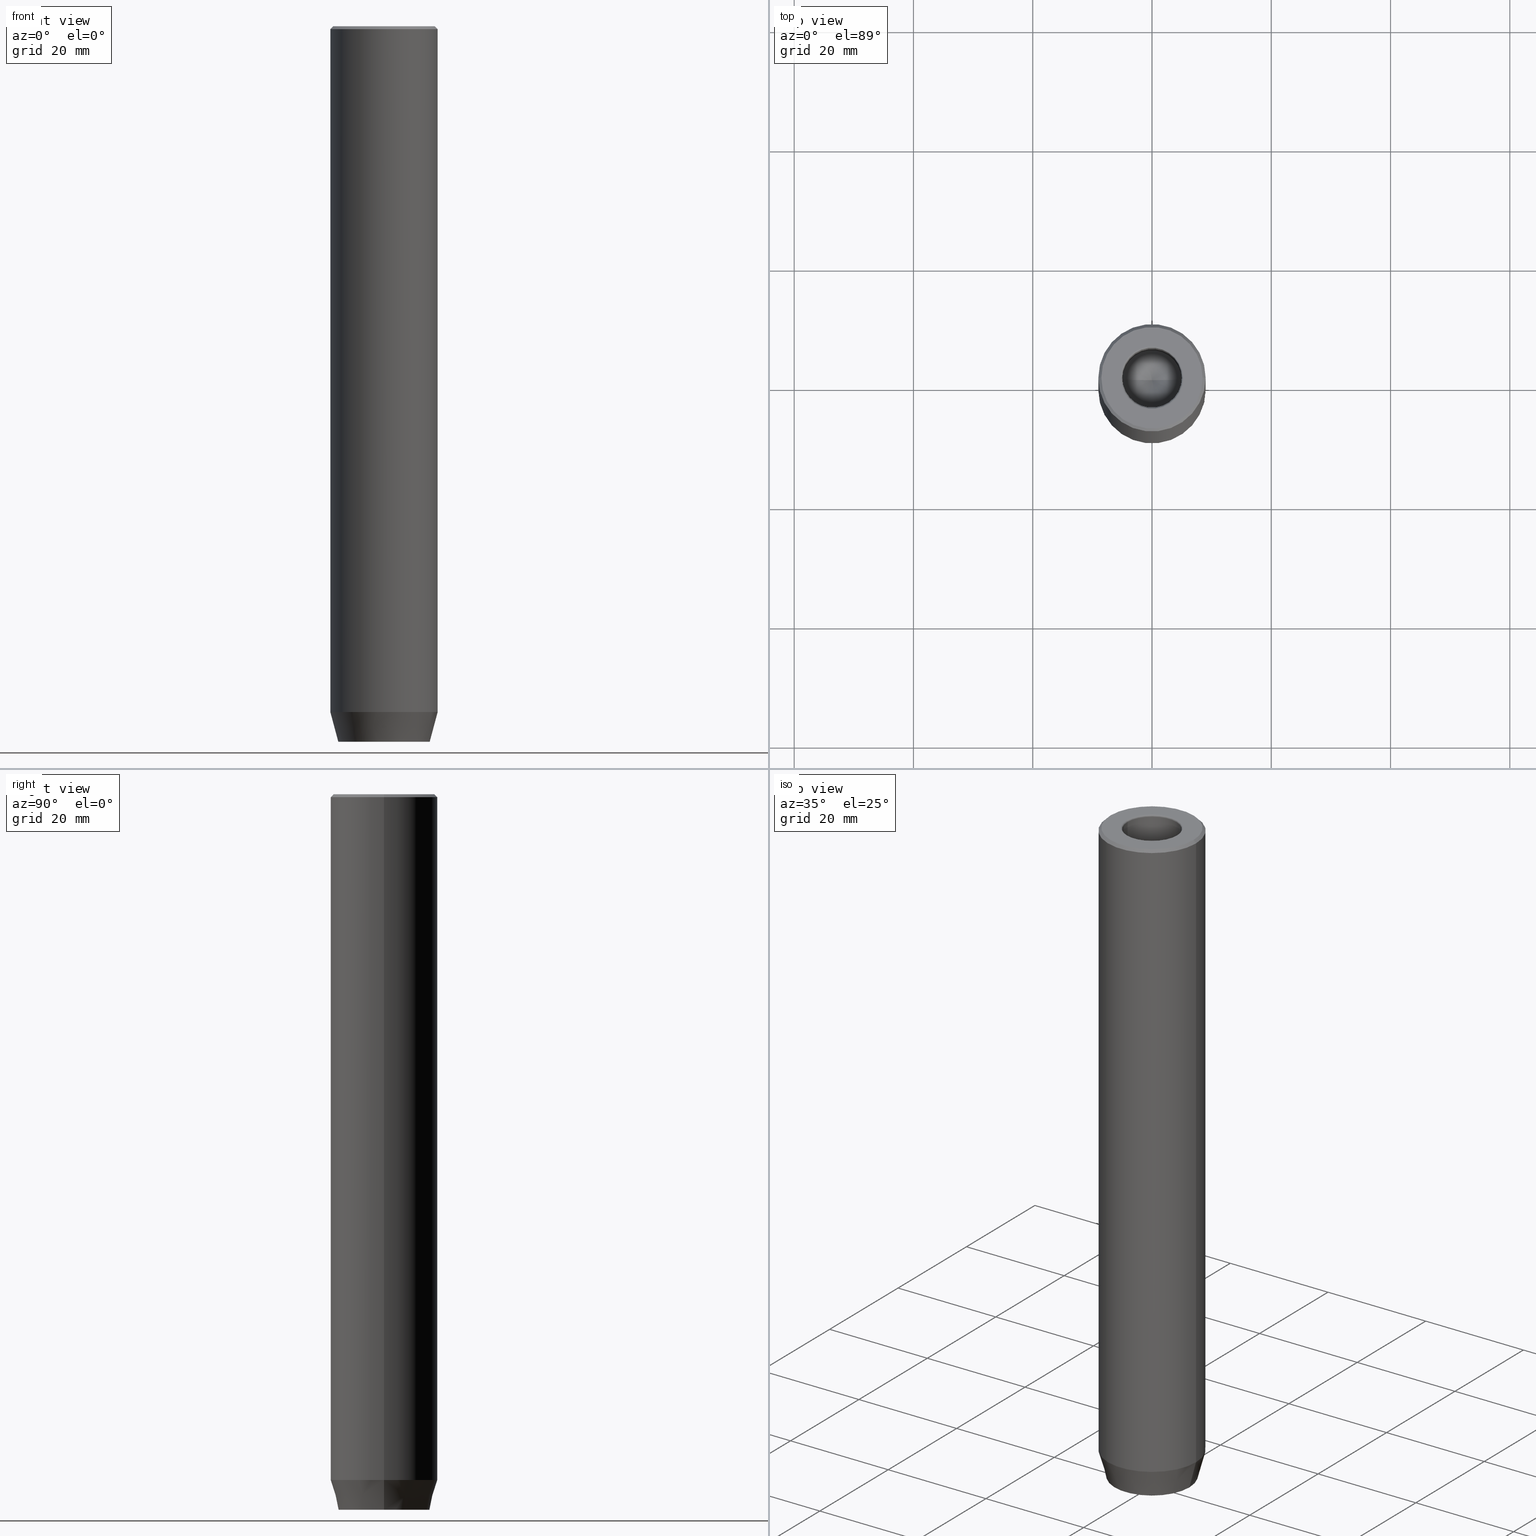
[diagram: canonical four-view strip — front | top / right | iso, engineering-drawing reading convention]
A machine part, canonical four-view strip (front | top / right | iso — engineering-drawing reading convention). The complete STEP part file that produces these views, byte-faithful:
ISO-10303-21;
HEADER;
FILE_DESCRIPTION (( 'STEP AP203' ),
    '1' );
FILE_NAME ('1062.STEP',
    '2024-01-02T17:29:06',
    ( '' ),
    ( '' ),
    'SwSTEP 2.0',
    'SolidWorks 2019',
    '' );
FILE_SCHEMA (( 'CONFIG_CONTROL_DESIGN' ));
ENDSEC;

DATA;
#1 = EDGE_CURVE ( 'NONE', #436, #375, #466, .T. ) ;
#2 = DIRECTION ( 'NONE',  ( -0.000000000000000000, -0.000000000000000000, 1.000000000000000000 ) ) ;
#3 = PRODUCT_DEFINITION_SHAPE ( 'NONE', 'NONE',  #337 ) ;
#4 = CIRCLE ( 'NONE', #541, 9.000000000000000000 ) ;
#5 = ORIENTED_EDGE ( 'NONE', *, *, #439, .T. ) ;
#6 = VECTOR ( 'NONE', #597, 1000.000000000000000 ) ;
#7 = CARTESIAN_POINT ( 'NONE',  ( 0.000000000000000000, 0.000000000000000000, -20.00000000000000000 ) ) ;
#8 = UNCERTAINTY_MEASURE_WITH_UNIT (LENGTH_MEASURE( 1.000000000000000082E-05 ), #278, 'distance_accuracy_value', 'NONE');
#9 = EDGE_CURVE ( 'NONE', #245, #316, #268, .T. ) ;
#10 = CARTESIAN_POINT ( 'NONE',  ( 9.000000000000000000, 0.000000000000000000, -114.9999999999999858 ) ) ;
#11 = CARTESIAN_POINT ( 'NONE',  ( 1.499999999999999556, -2.598076211353316012, -114.2000000000000028 ) ) ;
#12 = CARTESIAN_POINT ( 'NONE',  ( -9.000000000000000000, 1.102182119232617714E-15, -114.9999999999999858 ) ) ;
#13 = FACE_OUTER_BOUND ( 'NONE', #595, .T. ) ;
#14 = AXIS2_PLACEMENT_3D ( 'NONE', #251, #632, #46 ) ;
#15 = DIRECTION ( 'NONE',  ( 0.000000000000000000, -0.000000000000000000, 1.000000000000000000 ) ) ;
#16 = CIRCLE ( 'NONE', #523, 7.660254037844380193 ) ;
#17 = CIRCLE ( 'NONE', #275, 4.999999999999997335 ) ;
#18 = CARTESIAN_POINT ( 'NONE',  ( 2.999999999999999556, -7.511572993685796142E-16, -114.2000000000000028 ) ) ;
#19 = ORIENTED_EDGE ( 'NONE', *, *, #9, .T. ) ;
#20 = ORIENTED_EDGE ( 'NONE', *, *, #138, .F. ) ;
#21 = CARTESIAN_POINT ( 'NONE',  ( 1.499999999999999112, 2.598076211353316012, -114.2000000000000028 ) ) ;
#22 = DIRECTION ( 'NONE',  ( 0.8660254037844387076, -0.4999999999999997780, 0.000000000000000000 ) ) ;
#23 = EDGE_LOOP ( 'NONE', ( #26, #43, #530, #446 ) ) ;
#24 = VERTEX_POINT ( 'NONE', #66 ) ;
#25 = DIRECTION ( 'NONE',  ( 0.000000000000000000, -1.000000000000000000, 0.000000000000000000 ) ) ;
#26 = ORIENTED_EDGE ( 'NONE', *, *, #449, .F. ) ;
#27 = VECTOR ( 'NONE', #587, 1000.000000000000000 ) ;
#28 = CARTESIAN_POINT ( 'NONE',  ( 0.000000000000000000, 3.464101615137753054, -114.2000000000000028 ) ) ;
#29 = LOCAL_TIME ( 18, 29, 6.000000000000000000, #483 ) ;
#30 = ORIENTED_EDGE ( 'NONE', *, *, #146, .F. ) ;
#31 = DIRECTION ( 'NONE',  ( 1.224646799147353207E-16, 1.000000000000000000, 0.000000000000000000 ) ) ;
#32 = ORIENTED_EDGE ( 'NONE', *, *, #242, .F. ) ;
#33 = ORIENTED_EDGE ( 'NONE', *, *, #9, .F. ) ;
#34 = ORIENTED_EDGE ( 'NONE', *, *, #494, .F. ) ;
#35 = APPROVAL_STATUS ( 'not_yet_approved' ) ;
#36 = FACE_BOUND ( 'NONE', #624, .T. ) ;
#37 = APPROVAL_ROLE ( '' ) ;
#38 = CARTESIAN_POINT ( 'NONE',  ( -5.477553227319343599E-15, 0.000000000000000000, -23.00430309513780003 ) ) ;
#39 = FACE_OUTER_BOUND ( 'NONE', #478, .T. ) ;
#40 = ORIENTED_EDGE ( 'NONE', *, *, #91, .T. ) ;
#41 = CARTESIAN_POINT ( 'NONE',  ( 0.000000000000000000, 0.000000000000000000, 0.000000000000000000 ) ) ;
#42 = ADVANCED_BREP_SHAPE_REPRESENTATION ( '1062', ( #185, #201 ), #328 ) ;
#43 = ORIENTED_EDGE ( 'NONE', *, *, #122, .F. ) ;
#44 = DIRECTION ( 'NONE',  ( 1.000000000000000000, 0.000000000000000000, 0.000000000000000000 ) ) ;
#45 = PERSON_AND_ORGANIZATION_ROLE ( 'design_supplier' ) ;
#46 = DIRECTION ( 'NONE',  ( -1.000000000000000000, 0.000000000000000000, -0.000000000000000000 ) ) ;
#47 = DIRECTION ( 'NONE',  ( 1.000000000000000000, 0.000000000000000000, 0.000000000000000000 ) ) ;
#48 = ORIENTED_EDGE ( 'NONE', *, *, #266, .F. ) ;
#49 = CARTESIAN_POINT ( 'NONE',  ( 0.000000000000000000, 0.000000000000000000, 0.000000000000000000 ) ) ;
#50 = ADVANCED_FACE ( 'NONE', ( #212 ), #61, .F. ) ;
#51 = ORIENTED_EDGE ( 'NONE', *, *, #356, .F. ) ;
#52 = EDGE_LOOP ( 'NONE', ( #428, #290, #33, #563 ) ) ;
#53 = FACE_OUTER_BOUND ( 'NONE', #425, .T. ) ;
#54 = DESIGN_CONTEXT ( 'detailed design', #222, 'design' ) ;
#55 = ORIENTED_EDGE ( 'NONE', *, *, #627, .F. ) ;
#56 = DIRECTION ( 'NONE',  ( -0.7071067811865549002, 0.000000000000000000, -0.7071067811865401342 ) ) ;
#57 = CC_DESIGN_DATE_AND_TIME_ASSIGNMENT ( #284, #387, ( #337 ) ) ;
#58 = DIRECTION ( 'NONE',  ( 0.000000000000000000, 0.000000000000000000, -1.000000000000000000 ) ) ;
#59 = DIRECTION ( 'NONE',  ( -0.000000000000000000, -0.000000000000000000, -1.000000000000000000 ) ) ;
#60 = LINE ( 'NONE', #12, #406 ) ;
#61 = PLANE ( 'NONE',  #392 ) ;
#62 = ORIENTED_EDGE ( 'NONE', *, *, #190, .T. ) ;
#63 = CARTESIAN_POINT ( 'NONE',  ( -1.499999999999999112, -2.598076211353316012, -114.2000000000000028 ) ) ;
#64 = AXIS2_PLACEMENT_3D ( 'NONE', #488, #127, #525 ) ;
#65 = APPROVAL ( #295, 'NEUR�EN�' ) ;
#66 = CARTESIAN_POINT ( 'NONE',  ( 0.000000000000000000, -3.464101615137753942, -114.2000000000000028 ) ) ;
#67 = DIRECTION ( 'NONE',  ( -0.000000000000000000, -0.000000000000000000, 1.000000000000000000 ) ) ;
#68 = CARTESIAN_POINT ( 'NONE',  ( 0.000000000000000000, 0.000000000000000000, -114.9999999999999858 ) ) ;
#69 = CARTESIAN_POINT ( 'NONE',  ( 1.499999999999999556, -2.598076211353316012, -120.0000000000000000 ) ) ;
#70 = ORIENTED_EDGE ( 'NONE', *, *, #576, .F. ) ;
#71 = ORIENTED_EDGE ( 'NONE', *, *, #343, .F. ) ;
#72 = DIRECTION ( 'NONE',  ( -0.000000000000000000, -0.000000000000000000, 1.000000000000000000 ) ) ;
#73 = CIRCLE ( 'NONE', #381, 4.999999999999995559 ) ;
#74 = DIRECTION ( 'NONE',  ( 2.503857664561932376E-16, 1.000000000000000000, 0.000000000000000000 ) ) ;
#75 = AXIS2_PLACEMENT_3D ( 'NONE', #534, #87, #508 ) ;
#76 = EDGE_LOOP ( 'NONE', ( #204, #610, #299, #490 ) ) ;
#77 = DIRECTION ( 'NONE',  ( 0.000000000000000000, 0.000000000000000000, 1.000000000000000000 ) ) ;
#78 = CARTESIAN_POINT ( 'NONE',  ( 2.999999999999999556, -7.511572993685796142E-16, -114.2000000000000028 ) ) ;
#79 = ADVANCED_FACE ( 'NONE', ( #13 ), #485, .T. ) ;
#80 = ORIENTED_EDGE ( 'NONE', *, *, #562, .T. ) ;
#81 = DIRECTION ( 'NONE',  ( -0.8660254037844387076, 0.4999999999999997780, 0.000000000000000000 ) ) ;
#82 = APPROVAL_ROLE ( '' ) ;
#83 = CARTESIAN_POINT ( 'NONE',  ( 0.000000000000000000, 0.000000000000000000, 0.000000000000000000 ) ) ;
#84 = APPROVAL ( #35, 'NEUR�EN�' ) ;
#85 = VECTOR ( 'NONE', #571, 999.9999999999998863 ) ;
#86 = VECTOR ( 'NONE', #415, 1000.000000000000000 ) ;
#87 = DIRECTION ( 'NONE',  ( -0.000000000000000000, -0.000000000000000000, 1.000000000000000000 ) ) ;
#88 = ORIENTED_EDGE ( 'NONE', *, *, #456, .T. ) ;
#89 = ORIENTED_EDGE ( 'NONE', *, *, #356, .T. ) ;
#90 = DIRECTION ( 'NONE',  ( -0.000000000000000000, -0.000000000000000000, 1.000000000000000000 ) ) ;
#91 = EDGE_CURVE ( 'NONE', #316, #264, #309, .T. ) ;
#92 = CALENDAR_DATE ( 2024, 2, 1 ) ;
#93 = VERTEX_POINT ( 'NONE', #605 ) ;
#94 = DIRECTION ( 'NONE',  ( -1.000000000000000000, 0.000000000000000000, 0.000000000000000000 ) ) ;
#95 = AXIS2_PLACEMENT_3D ( 'NONE', #433, #626, #388 ) ;
#96 = CC_DESIGN_APPROVAL ( #192, ( #337 ) ) ;
#97 = SECURITY_CLASSIFICATION ( '', '', #631 ) ;
#98 = LINE ( 'NONE', #496, #253 ) ;
#99 = ADVANCED_FACE ( 'NONE', ( #517 ), #532, .T. ) ;
#100 = VERTEX_POINT ( 'NONE', #361 ) ;
#101 = FACE_OUTER_BOUND ( 'NONE', #76, .T. ) ;
#102 = VERTEX_POINT ( 'NONE', #158 ) ;
#103 = EDGE_CURVE ( 'NONE', #112, #345, #553, .T. ) ;
#104 = FACE_OUTER_BOUND ( 'NONE', #371, .T. ) ;
#105 = CIRCLE ( 'NONE', #460, 9.000000000000000000 ) ;
#106 = DIRECTION ( 'NONE',  ( -0.2588190451025214611, 3.169619151431774186E-17, 0.9659258262890679791 ) ) ;
#107 = DIRECTION ( 'NONE',  ( -0.4999999999999998335, 0.8660254037844388186, 0.000000000000000000 ) ) ;
#108 = DIRECTION ( 'NONE',  ( 0.8660254037844387076, -0.4999999999999997780, 0.000000000000000000 ) ) ;
#109 = ORIENTED_EDGE ( 'NONE', *, *, #1, .T. ) ;
#110 = VERTEX_POINT ( 'NONE', #314 ) ;
#111 = DIRECTION ( 'NONE',  ( -0.000000000000000000, -0.000000000000000000, 1.000000000000000000 ) ) ;
#112 = VERTEX_POINT ( 'NONE', #459 ) ;
#113 = DIRECTION ( 'NONE',  ( -1.000000000000000000, 2.503857664561932376E-16, 0.000000000000000000 ) ) ;
#114 = AXIS2_PLACEMENT_3D ( 'NONE', #160, #196, #510 ) ;
#115 = DIRECTION ( 'NONE',  ( -0.000000000000000000, -0.000000000000000000, 1.000000000000000000 ) ) ;
#116 = APPROVAL_DATE_TIME ( #611, #84 ) ;
#117 = DIRECTION ( 'NONE',  ( -1.000000000000000000, 0.000000000000000000, 0.000000000000000000 ) ) ;
#118 = ORIENTED_EDGE ( 'NONE', *, *, #120, .F. ) ;
#119 = ORIENTED_EDGE ( 'NONE', *, *, #494, .T. ) ;
#120 = EDGE_CURVE ( 'NONE', #220, #546, #612, .T. ) ;
#121 = CARTESIAN_POINT ( 'NONE',  ( 4.999999999999997335, 0.000000000000000000, 0.000000000000000000 ) ) ;
#122 = EDGE_CURVE ( 'NONE', #241, #145, #350, .T. ) ;
#123 = VECTOR ( 'NONE', #427, 1000.000000000000000 ) ;
#124 = DIRECTION ( 'NONE',  ( -0.8571673007021120005, 1.049727191138618326E-16, 0.5150380749100547106 ) ) ;
#125 = CIRCLE ( 'NONE', #75, 4.999999999999995559 ) ;
#126 = ORIENTED_EDGE ( 'NONE', *, *, #519, .T. ) ;
#127 = DIRECTION ( 'NONE',  ( -0.000000000000000000, -0.000000000000000000, 1.000000000000000000 ) ) ;
#128 = CARTESIAN_POINT ( 'NONE',  ( 0.000000000000000000, 0.000000000000000000, -0.4999999999999952260 ) ) ;
#129 = ORIENTED_EDGE ( 'NONE', *, *, #389, .T. ) ;
#130 = PERSON_AND_ORGANIZATION_ROLE ( 'design_owner' ) ;
#131 = LINE ( 'NONE', #270, #174 ) ;
#132 = ORIENTED_EDGE ( 'NONE', *, *, #191, .F. ) ;
#133 = ORIENTED_EDGE ( 'NONE', *, *, #627, .T. ) ;
#134 = DIRECTION ( 'NONE',  ( -0.000000000000000000, -0.000000000000000000, 1.000000000000000000 ) ) ;
#135 = VECTOR ( 'NONE', #171, 1000.000000000000000 ) ;
#136 = EDGE_CURVE ( 'NONE', #583, #377, #184, .T. ) ;
#137 = CARTESIAN_POINT ( 'NONE',  ( 0.000000000000000000, 3.464101615137753054, -114.2000000000000028 ) ) ;
#138 = EDGE_CURVE ( 'NONE', #241, #558, #416, .T. ) ;
#139 = CARTESIAN_POINT ( 'NONE',  ( 0.000000000000000000, 0.000000000000000000, -120.0000000000000000 ) ) ;
#140 = DIRECTION ( 'NONE',  ( -0.000000000000000000, -0.000000000000000000, 1.000000000000000000 ) ) ;
#141 = AXIS2_PLACEMENT_3D ( 'NONE', #374, #503, #506 ) ;
#142 = COORDINATED_UNIVERSAL_TIME_OFFSET ( 1, 0, .AHEAD. ) ;
#143 = VERTEX_POINT ( 'NONE', #366 ) ;
#144 = CARTESIAN_POINT ( 'NONE',  ( 8.499999999999992895, 1.040949779275249548E-15, 0.000000000000000000 ) ) ;
#145 = VERTEX_POINT ( 'NONE', #555 ) ;
#146 = EDGE_CURVE ( 'NONE', #264, #24, #453, .T. ) ;
#147 = ORIENTED_EDGE ( 'NONE', *, *, #146, .T. ) ;
#148 = CARTESIAN_POINT ( 'NONE',  ( -5.299999999999997158, 6.490628035480969952E-16, 0.000000000000000000 ) ) ;
#149 = EDGE_CURVE ( 'NONE', #24, #436, #197, .T. ) ;
#150 = CARTESIAN_POINT ( 'NONE',  ( 0.000000000000000000, 0.000000000000000000, 0.000000000000000000 ) ) ;
#151 = EDGE_LOOP ( 'NONE', ( #504, #19, #40, #147, #62, #318 ) ) ;
#152 = CONICAL_SURFACE ( 'NONE', #359, 4.999999999999995559, 1.029744258676653867 ) ;
#153 = APPROVAL_PERSON_ORGANIZATION ( #339, #65, #592 ) ;
#154 = CARTESIAN_POINT ( 'NONE',  ( 0.000000000000000000, 0.000000000000000000, -114.9999999999999858 ) ) ;
#155 = CARTESIAN_POINT ( 'NONE',  ( 0.000000000000000000, 0.000000000000000000, -0.2999999999999999889 ) ) ;
#156 = CC_DESIGN_PERSON_AND_ORGANIZATION_ASSIGNMENT ( #401, #539, ( #97 ) ) ;
#157 = CARTESIAN_POINT ( 'NONE',  ( 1.499999999999999112, 2.598076211353316012, -120.0000000000000000 ) ) ;
#158 = CARTESIAN_POINT ( 'NONE',  ( 9.000000000000000000, 0.000000000000000000, -114.9999999999999858 ) ) ;
#159 = ORIENTED_EDGE ( 'NONE', *, *, #178, .F. ) ;
#160 = CARTESIAN_POINT ( 'NONE',  ( 0.000000000000000000, 0.000000000000000000, 0.000000000000000000 ) ) ;
#161 = VECTOR ( 'NONE', #22, 1000.000000000000114 ) ;
#162 = AXIS2_PLACEMENT_3D ( 'NONE', #227, #615, #386 ) ;
#163 = DIRECTION ( 'NONE',  ( -0.000000000000000000, -0.000000000000000000, -1.000000000000000000 ) ) ;
#164 = CC_DESIGN_SECURITY_CLASSIFICATION ( #97, ( #442 ) ) ;
#165 = DIRECTION ( 'NONE',  ( 1.000000000000000000, 0.000000000000000000, 0.000000000000000000 ) ) ;
#166 = EDGE_LOOP ( 'NONE', ( #129, #537, #32, #133 ) ) ;
#167 = PERSON_AND_ORGANIZATION ( #225, #559 ) ;
#168 = EDGE_CURVE ( 'NONE', #288, #220, #455, .T. ) ;
#169 = DIRECTION ( 'NONE',  ( 0.000000000000000000, 0.000000000000000000, -1.000000000000000000 ) ) ;
#170 = PERSON_AND_ORGANIZATION ( #225, #559 ) ;
#171 = DIRECTION ( 'NONE',  ( -0.000000000000000000, -0.000000000000000000, -1.000000000000000000 ) ) ;
#172 = ORIENTED_EDGE ( 'NONE', *, *, #168, .T. ) ;
#173 = PERSON_AND_ORGANIZATION_ROLE ( 'creator' ) ;
#174 = VECTOR ( 'NONE', #124, 1000.000000000000000 ) ;
#175 = APPROVAL_PERSON_ORGANIZATION ( #170, #192, #82 ) ;
#176 = LINE ( 'NONE', #481, #511 ) ;
#177 = PERSON_AND_ORGANIZATION ( #225, #559 ) ;
#178 = EDGE_CURVE ( 'NONE', #110, #436, #529, .T. ) ;
#179 = LINE ( 'NONE', #621, #591 ) ;
#180 = CARTESIAN_POINT ( 'NONE',  ( 0.000000000000000000, 0.000000000000000000, -114.9999999999999858 ) ) ;
#181 = ORIENTED_EDGE ( 'NONE', *, *, #400, .F. ) ;
#182 = ORIENTED_EDGE ( 'NONE', *, *, #149, .F. ) ;
#183 = DIRECTION ( 'NONE',  ( 1.000000000000000000, 0.000000000000000000, 0.000000000000000000 ) ) ;
#184 = CIRCLE ( 'NONE', #141, 5.299999999999997158 ) ;
#185 = MANIFOLD_SOLID_BREP ( 'Odebrat vysunut�m1', #231 ) ;
#186 = SHAPE_DEFINITION_REPRESENTATION ( #3, #42 ) ;
#187 = FACE_OUTER_BOUND ( 'NONE', #565, .T. ) ;
#188 = EDGE_LOOP ( 'NONE', ( #70, #209, #396, #34 ) ) ;
#189 = CARTESIAN_POINT ( 'NONE',  ( 0.000000000000000000, 0.000000000000000000, 0.000000000000000000 ) ) ;
#190 = EDGE_CURVE ( 'NONE', #24, #143, #179, .T. ) ;
#191 = EDGE_CURVE ( 'NONE', #302, #100, #131, .T. ) ;
#192 = APPROVAL ( #281, 'NEUR�EN�' ) ;
#193 = DIRECTION ( 'NONE',  ( 1.000000000000000000, 0.000000000000000000, 0.000000000000000000 ) ) ;
#194 = VECTOR ( 'NONE', #108, 1000.000000000000114 ) ;
#195 = CARTESIAN_POINT ( 'NONE',  ( 4.999999999999995559, 0.000000000000000000, -20.00000000000000000 ) ) ;
#196 = DIRECTION ( 'NONE',  ( 0.000000000000000000, 0.000000000000000000, -1.000000000000000000 ) ) ;
#197 = LINE ( 'NONE', #410, #613 ) ;
#198 = CARTESIAN_POINT ( 'NONE',  ( 2.999999999999999112, -1.732050807568876971, -114.2000000000000028 ) ) ;
#199 = DIRECTION ( 'NONE',  ( -0.000000000000000000, -0.000000000000000000, 1.000000000000000000 ) ) ;
#200 = AXIS2_PLACEMENT_3D ( 'NONE', #580, #347, #47 ) ;
#201 = AXIS2_PLACEMENT_3D ( 'NONE', #527, #77, #384 ) ;
#202 = CARTESIAN_POINT ( 'NONE',  ( 2.168404344971008868E-16, 3.464101615137755275, -120.0000000000000000 ) ) ;
#203 = DIRECTION ( 'NONE',  ( -0.000000000000000000, -0.000000000000000000, 1.000000000000000000 ) ) ;
#204 = ORIENTED_EDGE ( 'NONE', *, *, #250, .T. ) ;
#205 = PRODUCT ( '1062', '1062', '', ( #618 ) ) ;
#206 = DIRECTION ( 'NONE',  ( 0.8660254037844387076, 0.4999999999999997224, 0.000000000000000000 ) ) ;
#207 = CARTESIAN_POINT ( 'NONE',  ( -1.499999999999999112, -2.598076211353316012, -120.0000000000000000 ) ) ;
#208 = EDGE_CURVE ( 'NONE', #102, #333, #329, .T. ) ;
#209 = ORIENTED_EDGE ( 'NONE', *, *, #400, .T. ) ;
#210 = ORIENTED_EDGE ( 'NONE', *, *, #122, .T. ) ;
#211 = ORIENTED_EDGE ( 'NONE', *, *, #576, .T. ) ;
#212 = FACE_OUTER_BOUND ( 'NONE', #237, .T. ) ;
#213 = VERTEX_POINT ( 'NONE', #424 ) ;
#214 = ORIENTED_EDGE ( 'NONE', *, *, #581, .F. ) ;
#215 = VECTOR ( 'NONE', #311, 1000.000000000000114 ) ;
#216 = VECTOR ( 'NONE', #56, 1000.000000000000000 ) ;
#217 = CYLINDRICAL_SURFACE ( 'NONE', #286, 4.999999999999997335 ) ;
#218 = VECTOR ( 'NONE', #206, 1000.000000000000114 ) ;
#219 = PLANE ( 'NONE',  #421 ) ;
#220 = VERTEX_POINT ( 'NONE', #568 ) ;
#221 = LINE ( 'NONE', #619, #135 ) ;
#222 = APPLICATION_CONTEXT ( 'configuration controlled 3d designs of mechanical parts and assemblies' ) ;
#223 = ORIENTED_EDGE ( 'NONE', *, *, #149, .T. ) ;
#224 = ORIENTED_EDGE ( 'NONE', *, *, #581, .T. ) ;
#225 = PERSON ( 'NEUR�EN�', 'NEUR�EN�', 'NEUR�EN�', ('NEUR�EN�'), ('NEUR�EN�'), ('NEUR�EN�') ) ;
#226 = CARTESIAN_POINT ( 'NONE',  ( -3.000000000000000888, -1.732050807568876527, -114.2000000000000028 ) ) ;
#227 = CARTESIAN_POINT ( 'NONE',  ( 0.000000000000000000, 7.660254037844380193, -120.0000000000000000 ) ) ;
#228 = ORIENTED_EDGE ( 'NONE', *, *, #136, .T. ) ;
#229 = EDGE_LOOP ( 'NONE', ( #603, #182, #30, #224 ) ) ;
#230 = EDGE_CURVE ( 'NONE', #333, #558, #261, .T. ) ;
#231 = CLOSED_SHELL ( 'NONE', ( #617, #363, #380, #323, #608, #451, #247, #596, #520, #99, #326, #362, #622, #79, #50, #471, #593, #307, #238, #507, #368 ) ) ;
#232 = CALENDAR_DATE ( 2024, 2, 1 ) ;
#233 = VECTOR ( 'NONE', #430, 1000.000000000000000 ) ;
#234 = FACE_OUTER_BOUND ( 'NONE', #229, .T. ) ;
#235 = CARTESIAN_POINT ( 'NONE',  ( 2.999999999999999112, -1.732050807568876971, -114.2000000000000028 ) ) ;
#236 = EDGE_CURVE ( 'NONE', #630, #558, #325, .T. ) ;
#237 = EDGE_LOOP ( 'NONE', ( #126, #548, #71, #255 ) ) ;
#238 = ADVANCED_FACE ( 'NONE', ( #39 ), #219, .F. ) ;
#239 = EDGE_LOOP ( 'NONE', ( #109, #55, #292, #223 ) ) ;
#240 = CARTESIAN_POINT ( 'NONE',  ( -3.000000000000000000, 1.732050807568877859, -120.0000000000000000 ) ) ;
#241 = VERTEX_POINT ( 'NONE', #279 ) ;
#242 = EDGE_CURVE ( 'NONE', #143, #112, #176, .T. ) ;
#243 = LINE ( 'NONE', #589, #27 ) ;
#244 = CARTESIAN_POINT ( 'NONE',  ( -1.499999999999999334, 2.598076211353316456, -114.2000000000000028 ) ) ;
#245 = VERTEX_POINT ( 'NONE', #28 ) ;
#246 = APPLICATION_CONTEXT ( 'configuration controlled 3d designs of mechanical parts and assemblies' ) ;
#247 = ADVANCED_FACE ( 'NONE', ( #36, #276 ), #338, .T. ) ;
#248 = CYLINDRICAL_SURFACE ( 'NONE', #413, 4.999999999999997335 ) ;
#249 = CC_DESIGN_DATE_AND_TIME_ASSIGNMENT ( #403, #636, ( #97 ) ) ;
#250 = EDGE_CURVE ( 'NONE', #102, #630, #4, .T. ) ;
#251 = CARTESIAN_POINT ( 'NONE',  ( 0.000000000000000000, 0.000000000000000000, -114.2000000000000028 ) ) ;
#252 = VECTOR ( 'NONE', #512, 1000.000000000000000 ) ;
#253 = VECTOR ( 'NONE', #445, 1000.000000000000000 ) ;
#254 = ORIENTED_EDGE ( 'NONE', *, *, #191, .T. ) ;
#255 = ORIENTED_EDGE ( 'NONE', *, *, #103, .T. ) ;
#256 = CARTESIAN_POINT ( 'NONE',  ( -3.000000000000000000, 1.732050807568877859, -114.2000000000000028 ) ) ;
#257 = CARTESIAN_POINT ( 'NONE',  ( -4.999999999999997335, 6.123233995736763324E-16, -0.2999999999999999889 ) ) ;
#258 = DIRECTION ( 'NONE',  ( 1.000000000000000000, 0.000000000000000000, 0.000000000000000000 ) ) ;
#259 = FACE_OUTER_BOUND ( 'NONE', #239, .T. ) ;
#260 = ORIENTED_EDGE ( 'NONE', *, *, #456, .F. ) ;
#261 = CIRCLE ( 'NONE', #382, 9.000000000000000000 ) ;
#262 = CIRCLE ( 'NONE', #114, 5.299999999999997158 ) ;
#263 = DIRECTION ( 'NONE',  ( 1.000000000000000000, 0.000000000000000000, 0.000000000000000000 ) ) ;
#264 = VERTEX_POINT ( 'NONE', #235 ) ;
#265 = LINE ( 'NONE', #407, #6 ) ;
#266 = EDGE_CURVE ( 'NONE', #583, #546, #315, .T. ) ;
#267 = EDGE_CURVE ( 'NONE', #316, #344, #221, .T. ) ;
#268 = LINE ( 'NONE', #418, #161 ) ;
#269 = CALENDAR_DATE ( 2024, 2, 1 ) ;
#270 = CARTESIAN_POINT ( 'NONE',  ( -4.999999999999995559, 6.123233995736761352E-16, -20.00000000000000000 ) ) ;
#271 = ORIENTED_EDGE ( 'NONE', *, *, #1, .F. ) ;
#272 = AXIS2_PLACEMENT_3D ( 'NONE', #551, #420, #258 ) ;
#273 = CIRCLE ( 'NONE', #305, 7.660254037844380193 ) ;
#274 = DIRECTION ( 'NONE',  ( 1.000000000000000000, 0.000000000000000000, 0.000000000000000000 ) ) ;
#275 = AXIS2_PLACEMENT_3D ( 'NONE', #426, #72, #274 ) ;
#276 = FACE_OUTER_BOUND ( 'NONE', #579, .T. ) ;
#277 = ORIENTED_EDGE ( 'NONE', *, *, #409, .T. ) ;
#278 =( LENGTH_UNIT ( ) NAMED_UNIT ( * ) SI_UNIT ( .MILLI., .METRE. ) );
#279 = CARTESIAN_POINT ( 'NONE',  ( -8.499999999999992895, 0.000000000000000000, 0.000000000000000000 ) ) ;
#280 = ORIENTED_EDGE ( 'NONE', *, *, #567, .F. ) ;
#281 = APPROVAL_STATUS ( 'not_yet_approved' ) ;
#282 = CARTESIAN_POINT ( 'NONE',  ( 9.000000000000000000, 0.000000000000000000, 0.000000000000000000 ) ) ;
#283 = VECTOR ( 'NONE', #320, 1000.000000000000000 ) ;
#284 = DATE_AND_TIME ( #469, #29 ) ;
#285 = CIRCLE ( 'NONE', #370, 8.499999999999992895 ) ;
#286 = AXIS2_PLACEMENT_3D ( 'NONE', #566, #521, #334 ) ;
#287 = CARTESIAN_POINT ( 'NONE',  ( 0.000000000000000000, 0.000000000000000000, -0.4999999999999952260 ) ) ;
#288 = VERTEX_POINT ( 'NONE', #435 ) ;
#289 = DIRECTION ( 'NONE',  ( 1.000000000000000000, 0.000000000000000000, 0.000000000000000000 ) ) ;
#290 = ORIENTED_EDGE ( 'NONE', *, *, #267, .F. ) ;
#291 = CARTESIAN_POINT ( 'NONE',  ( -3.000000000000000888, -1.732050807568876527, -120.0000000000000000 ) ) ;
#292 = ORIENTED_EDGE ( 'NONE', *, *, #190, .F. ) ;
#293 = CARTESIAN_POINT ( 'NONE',  ( 5.299999999999997158, 0.000000000000000000, 0.000000000000000000 ) ) ;
#294 = CONICAL_SURFACE ( 'NONE', #351, 9.000000000000000000, 0.2617993877991502405 ) ;
#295 = APPROVAL_STATUS ( 'not_yet_approved' ) ;
#296 = PRODUCT_RELATED_PRODUCT_CATEGORY ( 'detail', '', ( #205 ) ) ;
#297 = FACE_OUTER_BOUND ( 'NONE', #301, .T. ) ;
#298 = EDGE_CURVE ( 'NONE', #558, #333, #550, .T. ) ;
#299 = ORIENTED_EDGE ( 'NONE', *, *, #298, .T. ) ;
#300 = PLANE ( 'NONE',  #14 ) ;
#301 = EDGE_LOOP ( 'NONE', ( #260, #544, #352, #616 ) ) ;
#302 = VERTEX_POINT ( 'NONE', #38 ) ;
#303 = CARTESIAN_POINT ( 'NONE',  ( 0.000000000000000000, 0.000000000000000000, -114.9999999999999858 ) ) ;
#304 = DIRECTION ( 'NONE',  ( 1.000000000000000000, 0.000000000000000000, 0.000000000000000000 ) ) ;
#305 = AXIS2_PLACEMENT_3D ( 'NONE', #139, #493, #444 ) ;
#306 = AXIS2_PLACEMENT_3D ( 'NONE', #41, #134, #342 ) ;
#307 = ADVANCED_FACE ( 'NONE', ( #234 ), #628, .F. ) ;
#308 = CARTESIAN_POINT ( 'NONE',  ( -1.499999999999999334, 2.598076211353316456, -120.0000000000000000 ) ) ;
#309 = LINE ( 'NONE', #18, #283 ) ;
#310 = LINE ( 'NONE', #308, #218 ) ;
#311 = DIRECTION ( 'NONE',  ( -0.8660254037844387076, 0.4999999999999997780, 0.000000000000000000 ) ) ;
#312 = ORIENTED_EDGE ( 'NONE', *, *, #348, .T. ) ;
#313 = PLANE ( 'NONE',  #513 ) ;
#314 = CARTESIAN_POINT ( 'NONE',  ( 2.999999999999999112, -1.732050807568876971, -120.0000000000000000 ) ) ;
#315 = CIRCLE ( 'NONE', #572, 0.2999999999999999334 ) ;
#316 = VERTEX_POINT ( 'NONE', #578 ) ;
#317 = AXIS2_PLACEMENT_3D ( 'NONE', #150, #67, #367 ) ;
#318 = ORIENTED_EDGE ( 'NONE', *, *, #242, .T. ) ;
#319 = DIRECTION ( 'NONE',  ( -0.8660254037844387076, 0.4999999999999998335, 0.000000000000000000 ) ) ;
#320 = DIRECTION ( 'NONE',  ( -2.503857664561932376E-16, -1.000000000000000000, 0.000000000000000000 ) ) ;
#321 = PERSON_AND_ORGANIZATION_ROLE ( 'creator' ) ;
#322 = FACE_OUTER_BOUND ( 'NONE', #23, .T. ) ;
#323 = ADVANCED_FACE ( 'NONE', ( #531 ), #405, .T. ) ;
#324 =( NAMED_UNIT ( * ) PLANE_ANGLE_UNIT ( ) SI_UNIT ( $, .RADIAN. ) );
#325 = LINE ( 'NONE', #522, #123 ) ;
#326 = ADVANCED_FACE ( 'NONE', ( #322 ), #502, .T. ) ;
#327 = APPLICATION_PROTOCOL_DEFINITION ( 'international standard', 'config_control_design', 1994, #222 ) ;
#328 =( GEOMETRIC_REPRESENTATION_CONTEXT ( 3 ) GLOBAL_UNCERTAINTY_ASSIGNED_CONTEXT ( ( #8 ) ) GLOBAL_UNIT_ASSIGNED_CONTEXT ( ( #278, #324, #475 ) ) REPRESENTATION_CONTEXT ( 'NONE', 'WORKASPACE' ) );
#329 = LINE ( 'NONE', #282, #233 ) ;
#330 = EDGE_LOOP ( 'NONE', ( #369, #254, #88 ) ) ;
#331 = ORIENTED_EDGE ( 'NONE', *, *, #136, .F. ) ;
#332 = EDGE_CURVE ( 'NONE', #245, #464, #585, .T. ) ;
#333 = VERTEX_POINT ( 'NONE', #500 ) ;
#334 = DIRECTION ( 'NONE',  ( 1.000000000000000000, 0.000000000000000000, 0.000000000000000000 ) ) ;
#335 = DIRECTION ( 'NONE',  ( 1.000000000000000000, 0.000000000000000000, 0.000000000000000000 ) ) ;
#336 = EDGE_LOOP ( 'NONE', ( #609, #462, #393, #20 ) ) ;
#337 = PRODUCT_DEFINITION ( 'NEZN�M�', '', #442, #54 ) ;
#338 = PLANE ( 'NONE',  #162 ) ;
#339 = PERSON_AND_ORGANIZATION ( #225, #559 ) ;
#340 = AXIS2_PLACEMENT_3D ( 'NONE', #189, #346, #94 ) ;
#341 = LOCAL_TIME ( 18, 29, 6.000000000000000000, #588 ) ;
#342 = DIRECTION ( 'NONE',  ( 1.000000000000000000, 0.000000000000000000, 0.000000000000000000 ) ) ;
#343 = EDGE_CURVE ( 'NONE', #112, #245, #538, .T. ) ;
#344 = VERTEX_POINT ( 'NONE', #540 ) ;
#345 = VERTEX_POINT ( 'NONE', #240 ) ;
#346 = DIRECTION ( 'NONE',  ( 0.000000000000000000, 0.000000000000000000, -1.000000000000000000 ) ) ;
#347 = DIRECTION ( 'NONE',  ( -0.000000000000000000, -0.000000000000000000, 1.000000000000000000 ) ) ;
#348 = EDGE_CURVE ( 'NONE', #213, #93, #273, .T. ) ;
#349 = DIRECTION ( 'NONE',  ( 1.000000000000000000, 0.000000000000000000, 0.000000000000000000 ) ) ;
#350 = CIRCLE ( 'NONE', #472, 8.499999999999992895 ) ;
#351 = AXIS2_PLACEMENT_3D ( 'NONE', #303, #111, #501 ) ;
#352 = ORIENTED_EDGE ( 'NONE', *, *, #629, .T. ) ;
#353 = DIRECTION ( 'NONE',  ( 0.7071067811865549002, 8.659560562355022838E-17, -0.7071067811865401342 ) ) ;
#354 = EDGE_CURVE ( 'NONE', #145, #241, #285, .T. ) ;
#355 = FACE_BOUND ( 'NONE', #431, .T. ) ;
#356 = EDGE_CURVE ( 'NONE', #344, #110, #98, .T. ) ;
#357 = PLANE ( 'NONE',  #414 ) ;
#358 = DIRECTION ( 'NONE',  ( -0.8660254037844387076, -0.4999999999999999445, 0.000000000000000000 ) ) ;
#359 = AXIS2_PLACEMENT_3D ( 'NONE', #395, #402, #44 ) ;
#360 = CARTESIAN_POINT ( 'NONE',  ( -3.000000000000000444, 7.511572993685798115E-16, -114.2000000000000028 ) ) ;
#361 = CARTESIAN_POINT ( 'NONE',  ( -4.999999999999995559, 6.123233995736761352E-16, -20.00000000000000000 ) ) ;
#362 = ADVANCED_FACE ( 'NONE', ( #187 ), #634, .F. ) ;
#363 = ADVANCED_FACE ( 'NONE', ( #297 ), #248, .F. ) ;
#364 = ORIENTED_EDGE ( 'NONE', *, *, #230, .T. ) ;
#365 = PLANE ( 'NONE',  #394 ) ;
#366 = CARTESIAN_POINT ( 'NONE',  ( -3.000000000000000888, -1.732050807568876527, -114.2000000000000028 ) ) ;
#367 = DIRECTION ( 'NONE',  ( 1.000000000000000000, 0.000000000000000000, 0.000000000000000000 ) ) ;
#368 = ADVANCED_FACE ( 'NONE', ( #438 ), #300, .T. ) ;
#369 = ORIENTED_EDGE ( 'NONE', *, *, #439, .F. ) ;
#370 = AXIS2_PLACEMENT_3D ( 'NONE', #637, #492, #289 ) ;
#371 = EDGE_LOOP ( 'NONE', ( #210, #515 ) ) ;
#372 = CIRCLE ( 'NONE', #474, 0.2999999999999999889 ) ;
#373 = APPLICATION_PROTOCOL_DEFINITION ( 'international standard', 'config_control_design', 1994, #246 ) ;
#374 = CARTESIAN_POINT ( 'NONE',  ( 0.000000000000000000, 0.000000000000000000, 0.000000000000000000 ) ) ;
#375 = VERTEX_POINT ( 'NONE', #291 ) ;
#376 = DIRECTION ( 'NONE',  ( 1.000000000000000000, -2.503857664561932376E-16, 0.000000000000000000 ) ) ;
#377 = VERTEX_POINT ( 'NONE', #293 ) ;
#378 = APPROVAL_DATE_TIME ( #560, #192 ) ;
#379 = DIRECTION ( 'NONE',  ( 0.000000000000000000, 0.000000000000000000, -1.000000000000000000 ) ) ;
#380 = ADVANCED_FACE ( 'NONE', ( #447 ), #152, .F. ) ;
#381 = AXIS2_PLACEMENT_3D ( 'NONE', #7, #2, #193 ) ;
#382 = AXIS2_PLACEMENT_3D ( 'NONE', #287, #169, #526 ) ;
#383 = ORIENTED_EDGE ( 'NONE', *, *, #91, .F. ) ;
#384 = DIRECTION ( 'NONE',  ( 1.000000000000000000, 0.000000000000000000, 0.000000000000000000 ) ) ;
#385 = CC_DESIGN_APPROVAL ( #84, ( #442 ) ) ;
#386 = DIRECTION ( 'NONE',  ( -1.000000000000000000, 0.000000000000000000, -0.000000000000000000 ) ) ;
#387 = DATE_TIME_ROLE ( 'creation_date' ) ;
#388 = DIRECTION ( 'NONE',  ( 0.8660254037844385966, 0.4999999999999998890, 0.000000000000000000 ) ) ;
#389 = EDGE_CURVE ( 'NONE', #375, #345, #243, .T. ) ;
#390 = ORIENTED_EDGE ( 'NONE', *, *, #536, .T. ) ;
#391 = DIRECTION ( 'NONE',  ( 0.000000000000000000, 0.000000000000000000, -1.000000000000000000 ) ) ;
#392 = AXIS2_PLACEMENT_3D ( 'NONE', #509, #107, #607 ) ;
#393 = ORIENTED_EDGE ( 'NONE', *, *, #298, .F. ) ;
#394 = AXIS2_PLACEMENT_3D ( 'NONE', #600, #15, #604 ) ;
#395 = CARTESIAN_POINT ( 'NONE',  ( 0.000000000000000000, 0.000000000000000000, -20.00000000000000000 ) ) ;
#396 = ORIENTED_EDGE ( 'NONE', *, *, #468, .T. ) ;
#397 = ORIENTED_EDGE ( 'NONE', *, *, #236, .F. ) ;
#398 = DATE_AND_TIME ( #491, #524 ) ;
#399 = CARTESIAN_POINT ( 'NONE',  ( 0.000000000000000000, 0.000000000000000000, -120.0000000000000000 ) ) ;
#400 = EDGE_CURVE ( 'NONE', #93, #213, #16, .T. ) ;
#401 = PERSON_AND_ORGANIZATION ( #225, #559 ) ;
#402 = DIRECTION ( 'NONE',  ( -0.000000000000000000, -0.000000000000000000, 1.000000000000000000 ) ) ;
#403 = DATE_AND_TIME ( #92, #341 ) ;
#404 = LINE ( 'NONE', #144, #601 ) ;
#405 = CONICAL_SURFACE ( 'NONE', #557, 8.499999999999992895, 0.7853981633974587151 ) ;
#406 = VECTOR ( 'NONE', #106, 1000.000000000000114 ) ;
#407 = CARTESIAN_POINT ( 'NONE',  ( -4.999999999999997335, 6.123233995736763324E-16, 0.000000000000000000 ) ) ;
#408 = PLANE ( 'NONE',  #487 ) ;
#409 = EDGE_CURVE ( 'NONE', #288, #100, #73, .T. ) ;
#410 = CARTESIAN_POINT ( 'NONE',  ( 0.000000000000000000, -3.464101615137753942, -114.2000000000000028 ) ) ;
#411 = DIRECTION ( 'NONE',  ( 0.8660254037844387076, -0.4999999999999998335, 0.000000000000000000 ) ) ;
#412 = DIRECTION ( 'NONE',  ( 1.000000000000000000, 0.000000000000000000, 0.000000000000000000 ) ) ;
#413 = AXIS2_PLACEMENT_3D ( 'NONE', #49, #90, #183 ) ;
#414 = AXIS2_PLACEMENT_3D ( 'NONE', #360, #113, #556 ) ;
#415 = DIRECTION ( 'NONE',  ( -0.000000000000000000, -0.000000000000000000, -1.000000000000000000 ) ) ;
#416 = LINE ( 'NONE', #599, #216 ) ;
#417 = LINE ( 'NONE', #10, #623 ) ;
#418 = CARTESIAN_POINT ( 'NONE',  ( 1.499999999999999112, 2.598076211353316012, -114.2000000000000028 ) ) ;
#419 = COORDINATED_UNIVERSAL_TIME_OFFSET ( 1, 0, .AHEAD. ) ;
#420 = DIRECTION ( 'NONE',  ( -0.000000000000000000, -0.000000000000000000, 1.000000000000000000 ) ) ;
#421 = AXIS2_PLACEMENT_3D ( 'NONE', #78, #376, #470 ) ;
#422 = APPROVAL_PERSON_ORGANIZATION ( #423, #84, #37 ) ;
#423 = PERSON_AND_ORGANIZATION ( #225, #559 ) ;
#424 = CARTESIAN_POINT ( 'NONE',  ( 7.660254037844380193, 0.000000000000000000, -120.0000000000000000 ) ) ;
#425 = EDGE_LOOP ( 'NONE', ( #331, #635, #118, #482 ) ) ;
#426 = CARTESIAN_POINT ( 'NONE',  ( 0.000000000000000000, 0.000000000000000000, -0.2999999999999999889 ) ) ;
#427 = DIRECTION ( 'NONE',  ( -0.000000000000000000, -0.000000000000000000, 1.000000000000000000 ) ) ;
#428 = ORIENTED_EDGE ( 'NONE', *, *, #479, .T. ) ;
#429 = COORDINATED_UNIVERSAL_TIME_OFFSET ( 1, 0, .AHEAD. ) ;
#430 = DIRECTION ( 'NONE',  ( -0.000000000000000000, -0.000000000000000000, 1.000000000000000000 ) ) ;
#431 = EDGE_LOOP ( 'NONE', ( #80, #228 ) ) ;
#432 = FACE_OUTER_BOUND ( 'NONE', #602, .T. ) ;
#433 = CARTESIAN_POINT ( 'NONE',  ( 1.499999999999999556, -2.598076211353316012, -114.2000000000000028 ) ) ;
#434 = CC_DESIGN_PERSON_AND_ORGANIZATION_ASSIGNMENT ( #167, #321, ( #442 ) ) ;
#435 = CARTESIAN_POINT ( 'NONE',  ( 4.999999999999995559, 0.000000000000000000, -20.00000000000000000 ) ) ;
#436 = VERTEX_POINT ( 'NONE', #594 ) ;
#437 = ORIENTED_EDGE ( 'NONE', *, *, #562, .F. ) ;
#438 = FACE_OUTER_BOUND ( 'NONE', #151, .T. ) ;
#439 = EDGE_CURVE ( 'NONE', #302, #288, #543, .T. ) ;
#440 = APPROVAL_DATE_TIME ( #398, #65 ) ;
#441 = VECTOR ( 'NONE', #498, 1000.000000000000000 ) ;
#442 = PRODUCT_DEFINITION_FORMATION_WITH_SPECIFIED_SOURCE ( 'LIBOVOLN�', '', #205, .NOT_KNOWN. ) ;
#443 = DIRECTION ( 'NONE',  ( 0.8660254037844387076, 0.4999999999999997224, 0.000000000000000000 ) ) ;
#444 = DIRECTION ( 'NONE',  ( 1.000000000000000000, 0.000000000000000000, 0.000000000000000000 ) ) ;
#445 = DIRECTION ( 'NONE',  ( -2.503857664561932376E-16, -1.000000000000000000, 0.000000000000000000 ) ) ;
#446 = ORIENTED_EDGE ( 'NONE', *, *, #230, .F. ) ;
#447 = FACE_OUTER_BOUND ( 'NONE', #330, .T. ) ;
#448 = VECTOR ( 'NONE', #163, 1000.000000000000000 ) ;
#449 = EDGE_CURVE ( 'NONE', #145, #333, #404, .T. ) ;
#450 = ORIENTED_EDGE ( 'NONE', *, *, #479, .F. ) ;
#451 = ADVANCED_FACE ( 'NONE', ( #101 ), #545, .T. ) ;
#452 = FACE_OUTER_BOUND ( 'NONE', #52, .T. ) ;
#453 = LINE ( 'NONE', #11, #533 ) ;
#454 = CARTESIAN_POINT ( 'NONE',  ( 5.299999999999997158, 0.000000000000000000, -0.2999999999999999889 ) ) ;
#455 = LINE ( 'NONE', #121, #495 ) ;
#456 = EDGE_CURVE ( 'NONE', #100, #288, #125, .T. ) ;
#457 = FACE_OUTER_BOUND ( 'NONE', #477, .T. ) ;
#458 = VECTOR ( 'NONE', #639, 1000.000000000000000 ) ;
#459 = CARTESIAN_POINT ( 'NONE',  ( -3.000000000000000000, 1.732050807568877859, -114.2000000000000028 ) ) ;
#460 = AXIS2_PLACEMENT_3D ( 'NONE', #154, #516, #263 ) ;
#461 = CC_DESIGN_APPROVAL ( #65, ( #97 ) ) ;
#462 = ORIENTED_EDGE ( 'NONE', *, *, #449, .T. ) ;
#463 = FACE_OUTER_BOUND ( 'NONE', #166, .T. ) ;
#464 = VERTEX_POINT ( 'NONE', #202 ) ;
#465 = DIRECTION ( 'NONE',  ( 0.2588190451025214611, 0.000000000000000000, 0.9659258262890679791 ) ) ;
#466 = LINE ( 'NONE', #207, #215 ) ;
#467 = ORIENTED_EDGE ( 'NONE', *, *, #120, .T. ) ;
#468 = EDGE_CURVE ( 'NONE', #213, #102, #417, .T. ) ;
#469 = CALENDAR_DATE ( 2024, 2, 1 ) ;
#470 = DIRECTION ( 'NONE',  ( 2.503857664561932376E-16, 1.000000000000000000, 0.000000000000000000 ) ) ;
#471 = ADVANCED_FACE ( 'NONE', ( #463 ), #357, .F. ) ;
#472 = AXIS2_PLACEMENT_3D ( 'NONE', #614, #203, #165 ) ;
#473 = ORIENTED_EDGE ( 'NONE', *, *, #208, .T. ) ;
#474 = AXIS2_PLACEMENT_3D ( 'NONE', #454, #25, #58 ) ;
#475 =( NAMED_UNIT ( * ) SI_UNIT ( $, .STERADIAN. ) SOLID_ANGLE_UNIT ( ) );
#476 = CARTESIAN_POINT ( 'NONE',  ( -5.299999999999997158, 6.490628035480968966E-16, -0.2999999999999999889 ) ) ;
#477 = EDGE_LOOP ( 'NONE', ( #397, #119, #473, #364 ) ) ;
#478 = EDGE_LOOP ( 'NONE', ( #89, #214, #383, #569 ) ) ;
#479 = EDGE_CURVE ( 'NONE', #464, #344, #549, .T. ) ;
#480 = LINE ( 'NONE', #226, #448 ) ;
#481 = CARTESIAN_POINT ( 'NONE',  ( -3.000000000000000444, 7.511572993685798115E-16, -114.2000000000000028 ) ) ;
#482 = ORIENTED_EDGE ( 'NONE', *, *, #536, .F. ) ;
#483 = COORDINATED_UNIVERSAL_TIME_OFFSET ( 1, 0, .AHEAD. ) ;
#484 = DIRECTION ( 'NONE',  ( -1.000000000000000000, 1.224646799147353207E-16, 0.000000000000000000 ) ) ;
#485 = TOROIDAL_SURFACE ( 'NONE', #590, 5.299999999999997158, 0.2999999999999999889 ) ;
#486 = VECTOR ( 'NONE', #443, 1000.000000000000114 ) ;
#487 = AXIS2_PLACEMENT_3D ( 'NONE', #63, #606, #411 ) ;
#488 = CARTESIAN_POINT ( 'NONE',  ( 0.000000000000000000, 0.000000000000000000, -0.2999999999999999889 ) ) ;
#489 = DIRECTION ( 'NONE',  ( 1.000000000000000000, 0.000000000000000000, 0.000000000000000000 ) ) ;
#490 = ORIENTED_EDGE ( 'NONE', *, *, #208, .F. ) ;
#491 = CALENDAR_DATE ( 2024, 2, 1 ) ;
#492 = DIRECTION ( 'NONE',  ( -0.000000000000000000, -0.000000000000000000, 1.000000000000000000 ) ) ;
#493 = DIRECTION ( 'NONE',  ( -0.000000000000000000, -0.000000000000000000, 1.000000000000000000 ) ) ;
#494 = EDGE_CURVE ( 'NONE', #630, #102, #105, .T. ) ;
#495 = VECTOR ( 'NONE', #518, 1000.000000000000000 ) ;
#496 = CARTESIAN_POINT ( 'NONE',  ( 2.999999999999999556, -7.511572993685796142E-16, -120.0000000000000000 ) ) ;
#497 = ORIENTED_EDGE ( 'NONE', *, *, #389, .F. ) ;
#498 = DIRECTION ( 'NONE',  ( 0.8571673007021120005, 0.000000000000000000, 0.5150380749100547106 ) ) ;
#499 = ORIENTED_EDGE ( 'NONE', *, *, #409, .F. ) ;
#500 = CARTESIAN_POINT ( 'NONE',  ( 9.000000000000000000, 0.000000000000000000, -0.4999999999999952260 ) ) ;
#501 = DIRECTION ( 'NONE',  ( 1.000000000000000000, 0.000000000000000000, 0.000000000000000000 ) ) ;
#502 = CONICAL_SURFACE ( 'NONE', #340, 8.499999999999992895, 0.7853981633974587151 ) ;
#503 = DIRECTION ( 'NONE',  ( 0.000000000000000000, 0.000000000000000000, -1.000000000000000000 ) ) ;
#504 = ORIENTED_EDGE ( 'NONE', *, *, #343, .T. ) ;
#505 = CYLINDRICAL_SURFACE ( 'NONE', #317, 9.000000000000000000 ) ;
#506 = DIRECTION ( 'NONE',  ( 1.000000000000000000, 0.000000000000000000, 0.000000000000000000 ) ) ;
#507 = ADVANCED_FACE ( 'NONE', ( #452 ), #313, .F. ) ;
#508 = DIRECTION ( 'NONE',  ( 1.000000000000000000, 0.000000000000000000, 0.000000000000000000 ) ) ;
#509 = CARTESIAN_POINT ( 'NONE',  ( -1.499999999999999334, 2.598076211353316456, -114.2000000000000028 ) ) ;
#510 = DIRECTION ( 'NONE',  ( 1.000000000000000000, 0.000000000000000000, 0.000000000000000000 ) ) ;
#511 = VECTOR ( 'NONE', #74, 1000.000000000000000 ) ;
#512 = DIRECTION ( 'NONE',  ( -0.000000000000000000, -0.000000000000000000, -1.000000000000000000 ) ) ;
#513 = AXIS2_PLACEMENT_3D ( 'NONE', #21, #552, #319 ) ;
#514 = EDGE_LOOP ( 'NONE', ( #312, #211, #574, #564 ) ) ;
#515 = ORIENTED_EDGE ( 'NONE', *, *, #354, .T. ) ;
#516 = DIRECTION ( 'NONE',  ( -0.000000000000000000, -0.000000000000000000, 1.000000000000000000 ) ) ;
#517 = FACE_OUTER_BOUND ( 'NONE', #188, .T. ) ;
#518 = DIRECTION ( 'NONE',  ( -0.000000000000000000, -0.000000000000000000, 1.000000000000000000 ) ) ;
#519 = EDGE_CURVE ( 'NONE', #345, #464, #310, .T. ) ;
#520 = ADVANCED_FACE ( 'NONE', ( #457 ), #505, .T. ) ;
#521 = DIRECTION ( 'NONE',  ( -0.000000000000000000, -0.000000000000000000, 1.000000000000000000 ) ) ;
#522 = CARTESIAN_POINT ( 'NONE',  ( -9.000000000000000000, 1.102182119232617714E-15, 0.000000000000000000 ) ) ;
#523 = AXIS2_PLACEMENT_3D ( 'NONE', #399, #140, #349 ) ;
#524 = LOCAL_TIME ( 18, 29, 6.000000000000000000, #142 ) ;
#525 = DIRECTION ( 'NONE',  ( 1.000000000000000000, 0.000000000000000000, 0.000000000000000000 ) ) ;
#526 = DIRECTION ( 'NONE',  ( 1.000000000000000000, 0.000000000000000000, 0.000000000000000000 ) ) ;
#527 = CARTESIAN_POINT ( 'NONE',  ( 0.000000000000000000, 0.000000000000000000, 0.000000000000000000 ) ) ;
#528 = CC_DESIGN_PERSON_AND_ORGANIZATION_ASSIGNMENT ( #620, #173, ( #337 ) ) ;
#529 = LINE ( 'NONE', #69, #85 ) ;
#530 = ORIENTED_EDGE ( 'NONE', *, *, #138, .T. ) ;
#531 = FACE_OUTER_BOUND ( 'NONE', #336, .T. ) ;
#532 = CONICAL_SURFACE ( 'NONE', #633, 9.000000000000000000, 0.2617993877991502405 ) ;
#533 = VECTOR ( 'NONE', #358, 999.9999999999998863 ) ;
#534 = CARTESIAN_POINT ( 'NONE',  ( 0.000000000000000000, 0.000000000000000000, -20.00000000000000000 ) ) ;
#535 = ORIENTED_EDGE ( 'NONE', *, *, #348, .F. ) ;
#536 = EDGE_CURVE ( 'NONE', #377, #220, #372, .T. ) ;
#537 = ORIENTED_EDGE ( 'NONE', *, *, #103, .F. ) ;
#538 = LINE ( 'NONE', #244, #486 ) ;
#539 = PERSON_AND_ORGANIZATION_ROLE ( 'classification_officer' ) ;
#540 = CARTESIAN_POINT ( 'NONE',  ( 3.000000000000000000, 1.732050807568877193, -120.0000000000000000 ) ) ;
#541 = AXIS2_PLACEMENT_3D ( 'NONE', #180, #575, #489 ) ;
#542 = LOCAL_TIME ( 18, 29, 6.000000000000000000, #419 ) ;
#543 = LINE ( 'NONE', #195, #441 ) ;
#544 = ORIENTED_EDGE ( 'NONE', *, *, #567, .T. ) ;
#545 = CYLINDRICAL_SURFACE ( 'NONE', #306, 9.000000000000000000 ) ;
#546 = VERTEX_POINT ( 'NONE', #257 ) ;
#547 = LINE ( 'NONE', #198, #86 ) ;
#548 = ORIENTED_EDGE ( 'NONE', *, *, #332, .F. ) ;
#549 = LINE ( 'NONE', #157, #194 ) ;
#550 = CIRCLE ( 'NONE', #582, 9.000000000000000000 ) ;
#551 = CARTESIAN_POINT ( 'NONE',  ( 0.000000000000000000, 0.000000000000000000, -0.2999999999999999889 ) ) ;
#552 = DIRECTION ( 'NONE',  ( 0.4999999999999998335, 0.8660254037844387076, -0.000000000000000000 ) ) ;
#553 = LINE ( 'NONE', #256, #252 ) ;
#554 = FACE_OUTER_BOUND ( 'NONE', #514, .T. ) ;
#555 = CARTESIAN_POINT ( 'NONE',  ( 8.499999999999992895, 1.071565949253933532E-15, 0.000000000000000000 ) ) ;
#556 = DIRECTION ( 'NONE',  ( -2.503857664561932376E-16, -1.000000000000000000, 0.000000000000000000 ) ) ;
#557 = AXIS2_PLACEMENT_3D ( 'NONE', #83, #391, #117 ) ;
#558 = VERTEX_POINT ( 'NONE', #598 ) ;
#559 = ORGANIZATION ( 'NEUR�EN�', 'NEUR�EN�', '' ) ;
#560 = DATE_AND_TIME ( #269, #573 ) ;
#561 = CC_DESIGN_PERSON_AND_ORGANIZATION_ASSIGNMENT ( #638, #45, ( #442 ) ) ;
#562 = EDGE_CURVE ( 'NONE', #377, #583, #262, .T. ) ;
#563 = ORIENTED_EDGE ( 'NONE', *, *, #332, .T. ) ;
#564 = ORIENTED_EDGE ( 'NONE', *, *, #468, .F. ) ;
#565 = EDGE_LOOP ( 'NONE', ( #132, #5, #277 ) ) ;
#566 = CARTESIAN_POINT ( 'NONE',  ( 0.000000000000000000, 0.000000000000000000, 0.000000000000000000 ) ) ;
#567 = EDGE_CURVE ( 'NONE', #100, #546, #265, .T. ) ;
#568 = CARTESIAN_POINT ( 'NONE',  ( 4.999999999999997335, 0.000000000000000000, -0.2999999999999999889 ) ) ;
#569 = ORIENTED_EDGE ( 'NONE', *, *, #267, .T. ) ;
#570 = ORIENTED_EDGE ( 'NONE', *, *, #519, .F. ) ;
#571 = DIRECTION ( 'NONE',  ( -0.8660254037844387076, -0.4999999999999999445, 0.000000000000000000 ) ) ;
#572 = AXIS2_PLACEMENT_3D ( 'NONE', #476, #31, #484 ) ;
#573 = LOCAL_TIME ( 18, 29, 6.000000000000000000, #429 ) ;
#574 = ORIENTED_EDGE ( 'NONE', *, *, #250, .F. ) ;
#575 = DIRECTION ( 'NONE',  ( -0.000000000000000000, -0.000000000000000000, 1.000000000000000000 ) ) ;
#576 = EDGE_CURVE ( 'NONE', #93, #630, #60, .T. ) ;
#577 = ORIENTED_EDGE ( 'NONE', *, *, #629, .F. ) ;
#578 = CARTESIAN_POINT ( 'NONE',  ( 3.000000000000000000, 1.732050807568877193, -114.2000000000000028 ) ) ;
#579 = EDGE_LOOP ( 'NONE', ( #535, #181 ) ) ;
#580 = CARTESIAN_POINT ( 'NONE',  ( 0.000000000000000000, 0.000000000000000000, -20.00000000000000000 ) ) ;
#581 = EDGE_CURVE ( 'NONE', #264, #110, #547, .T. ) ;
#582 = AXIS2_PLACEMENT_3D ( 'NONE', #128, #379, #335 ) ;
#583 = VERTEX_POINT ( 'NONE', #148 ) ;
#584 = TOROIDAL_SURFACE ( 'NONE', #64, 5.299999999999997158, 0.2999999999999999889 ) ;
#585 = LINE ( 'NONE', #137, #458 ) ;
#586 = CC_DESIGN_PERSON_AND_ORGANIZATION_ASSIGNMENT ( #177, #130, ( #205 ) ) ;
#587 = DIRECTION ( 'NONE',  ( 2.503857664561932376E-16, 1.000000000000000000, 0.000000000000000000 ) ) ;
#588 = COORDINATED_UNIVERSAL_TIME_OFFSET ( 1, 0, .AHEAD. ) ;
#589 = CARTESIAN_POINT ( 'NONE',  ( -3.000000000000000444, 7.511572993685798115E-16, -120.0000000000000000 ) ) ;
#590 = AXIS2_PLACEMENT_3D ( 'NONE', #155, #115, #304 ) ;
#591 = VECTOR ( 'NONE', #81, 1000.000000000000114 ) ;
#592 = APPROVAL_ROLE ( '' ) ;
#593 = ADVANCED_FACE ( 'NONE', ( #259 ), #408, .F. ) ;
#594 = CARTESIAN_POINT ( 'NONE',  ( 0.000000000000000000, -3.464101615137753942, -120.0000000000000000 ) ) ;
#595 = EDGE_LOOP ( 'NONE', ( #48, #437, #390, #577 ) ) ;
#596 = ADVANCED_FACE ( 'NONE', ( #355, #104 ), #365, .T. ) ;
#597 = DIRECTION ( 'NONE',  ( -0.000000000000000000, -0.000000000000000000, 1.000000000000000000 ) ) ;
#598 = CARTESIAN_POINT ( 'NONE',  ( -9.000000000000000000, 1.102182119232617714E-15, -0.4999999999999952260 ) ) ;
#599 = CARTESIAN_POINT ( 'NONE',  ( -8.499999999999992895, 0.000000000000000000, 0.000000000000000000 ) ) ;
#600 = CARTESIAN_POINT ( 'NONE',  ( 0.000000000000000000, 0.000000000000000000, 0.000000000000000000 ) ) ;
#601 = VECTOR ( 'NONE', #353, 1000.000000000000000 ) ;
#602 = EDGE_LOOP ( 'NONE', ( #280, #499, #172, #467 ) ) ;
#603 = ORIENTED_EDGE ( 'NONE', *, *, #178, .T. ) ;
#604 = DIRECTION ( 'NONE',  ( 1.000000000000000000, 0.000000000000000000, 0.000000000000000000 ) ) ;
#605 = CARTESIAN_POINT ( 'NONE',  ( -7.660254037844380193, 1.020146339021394272E-15, -120.0000000000000000 ) ) ;
#606 = DIRECTION ( 'NONE',  ( -0.4999999999999998335, -0.8660254037844387076, 0.000000000000000000 ) ) ;
#607 = DIRECTION ( 'NONE',  ( -0.8660254037844387076, -0.4999999999999997780, 0.000000000000000000 ) ) ;
#608 = ADVANCED_FACE ( 'NONE', ( #554 ), #294, .T. ) ;
#609 = ORIENTED_EDGE ( 'NONE', *, *, #354, .F. ) ;
#610 = ORIENTED_EDGE ( 'NONE', *, *, #236, .T. ) ;
#611 = DATE_AND_TIME ( #232, #542 ) ;
#612 = CIRCLE ( 'NONE', #272, 4.999999999999997335 ) ;
#613 = VECTOR ( 'NONE', #59, 1000.000000000000000 ) ;
#614 = CARTESIAN_POINT ( 'NONE',  ( 0.000000000000000000, 0.000000000000000000, 0.000000000000000000 ) ) ;
#615 = DIRECTION ( 'NONE',  ( 0.000000000000000000, 0.000000000000000000, -1.000000000000000000 ) ) ;
#616 = ORIENTED_EDGE ( 'NONE', *, *, #168, .F. ) ;
#617 = ADVANCED_FACE ( 'NONE', ( #53 ), #584, .T. ) ;
#618 = MECHANICAL_CONTEXT ( 'NONE', #246, 'mechanical' ) ;
#619 = CARTESIAN_POINT ( 'NONE',  ( 3.000000000000000000, 1.732050807568877193, -114.2000000000000028 ) ) ;
#620 = PERSON_AND_ORGANIZATION ( #225, #559 ) ;
#621 = CARTESIAN_POINT ( 'NONE',  ( -1.499999999999999112, -2.598076211353316012, -114.2000000000000028 ) ) ;
#622 = ADVANCED_FACE ( 'NONE', ( #432 ), #217, .F. ) ;
#623 = VECTOR ( 'NONE', #465, 1000.000000000000114 ) ;
#624 = EDGE_LOOP ( 'NONE', ( #570, #497, #271, #159, #51, #450 ) ) ;
#625 = CARTESIAN_POINT ( 'NONE',  ( -9.000000000000000000, 1.102182119232617714E-15, -114.9999999999999858 ) ) ;
#626 = DIRECTION ( 'NONE',  ( 0.4999999999999999445, -0.8660254037844387076, 0.000000000000000000 ) ) ;
#627 = EDGE_CURVE ( 'NONE', #143, #375, #480, .T. ) ;
#628 = PLANE ( 'NONE',  #95 ) ;
#629 = EDGE_CURVE ( 'NONE', #546, #220, #17, .T. ) ;
#630 = VERTEX_POINT ( 'NONE', #625 ) ;
#631 = SECURITY_CLASSIFICATION_LEVEL ( 'unclassified' ) ;
#632 = DIRECTION ( 'NONE',  ( 0.000000000000000000, 0.000000000000000000, -1.000000000000000000 ) ) ;
#633 = AXIS2_PLACEMENT_3D ( 'NONE', #68, #199, #412 ) ;
#634 = CONICAL_SURFACE ( 'NONE', #200, 4.999999999999995559, 1.029744258676653867 ) ;
#635 = ORIENTED_EDGE ( 'NONE', *, *, #266, .T. ) ;
#636 = DATE_TIME_ROLE ( 'classification_date' ) ;
#637 = CARTESIAN_POINT ( 'NONE',  ( 0.000000000000000000, 0.000000000000000000, 0.000000000000000000 ) ) ;
#638 = PERSON_AND_ORGANIZATION ( #225, #559 ) ;
#639 = DIRECTION ( 'NONE',  ( -0.000000000000000000, -0.000000000000000000, -1.000000000000000000 ) ) ;
ENDSEC;
END-ISO-10303-21;
